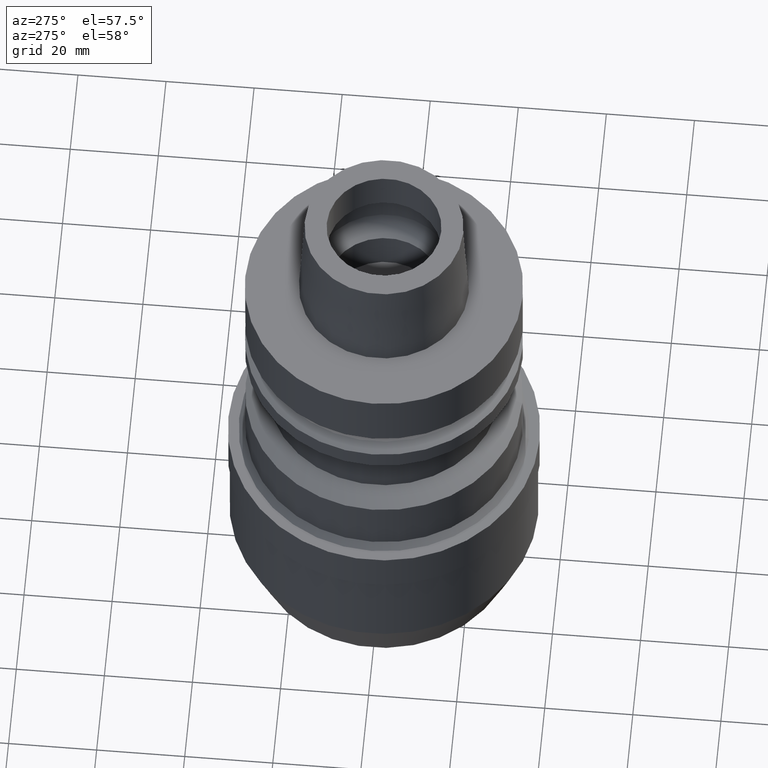
[diagram: clean part render]
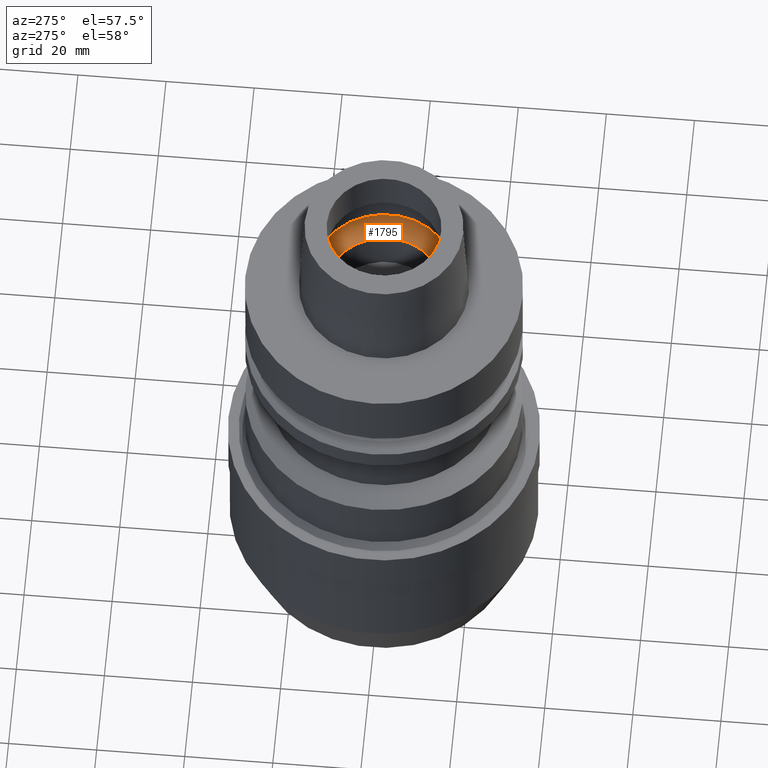
[diagram: same view with one face highlighted and labeled with its STEP entity id]
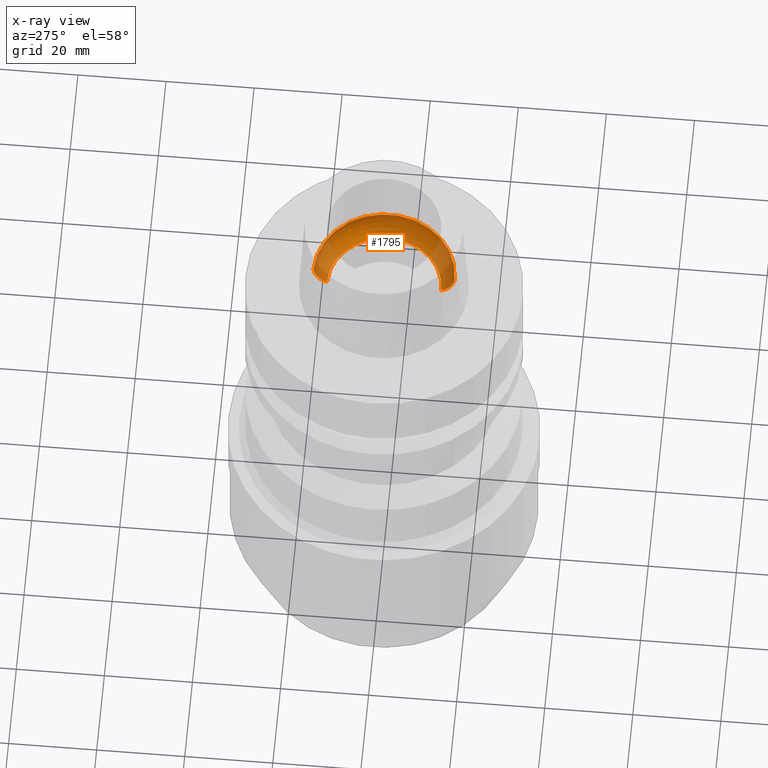
[diagram: x-ray of the same camera — body ghosted, the highlighted face saturated]
A machine part, auxiliary view. The second image highlights one B-rep face of the part: STEP entity #1795.
The next image is the same camera in x-ray: the body ghosted, the highlighted face saturated — about 32% of this face is hidden behind the body in this view.
In plain terms, the highlighted toroidal blend (fillet) surface has major radius 10 mm and minor (blend) radius 6 mm.
Its self-contained STEP definition (entity closure, byte-faithful):
#788=CARTESIAN_POINT('',(0.E0,-1.E1,5.246E0));
#789=DIRECTION('',(-1.E0,0.E0,0.E0));
#790=DIRECTION('',(0.E0,-5.E-1,-8.660254037844E-1));
#791=AXIS2_PLACEMENT_3D('',#788,#789,#790);
#804=CARTESIAN_POINT('',(0.E0,1.E1,5.246E0));
#805=DIRECTION('',(1.E0,0.E0,0.E0));
#806=DIRECTION('',(0.E0,5.E-1,-8.660254037844E-1));
#807=AXIS2_PLACEMENT_3D('',#804,#805,#806);
#812=CARTESIAN_POINT('',(0.E0,0.E0,5.246E0));
#813=DIRECTION('',(0.E0,0.E0,-1.E0));
#814=DIRECTION('',(0.E0,1.E0,0.E0));
#815=AXIS2_PLACEMENT_3D('',#812,#813,#814);
#820=CARTESIAN_POINT('',(0.E0,0.E0,4.984757729335E-2));
#821=DIRECTION('',(0.E0,0.E0,1.E0));
#822=DIRECTION('',(0.E0,-1.E0,0.E0));
#823=AXIS2_PLACEMENT_3D('',#820,#821,#822);
#1026=CARTESIAN_POINT('',(0.E0,1.3E1,4.984757729331E-2));
#1027=VERTEX_POINT('',#1026);
#1028=CARTESIAN_POINT('',(0.E0,-1.3E1,4.984757729335E-2));
#1029=VERTEX_POINT('',#1028);
#1030=CARTESIAN_POINT('',(0.E0,1.6E1,5.246E0));
#1031=VERTEX_POINT('',#1030);
#1032=CARTESIAN_POINT('',(0.E0,-1.6E1,5.246E0));
#1033=VERTEX_POINT('',#1032);
#1783=CARTESIAN_POINT('',(0.E0,0.E0,5.246E0));
#1784=DIRECTION('',(0.E0,0.E0,1.E0));
#1785=DIRECTION('',(0.E0,1.E0,0.E0));
#1786=AXIS2_PLACEMENT_3D('',#1783,#1784,#1785);
#1787=TOROIDAL_SURFACE('',#1786,1.E1,6.E0);
#1788=ORIENTED_EDGE('',*,*,#1773,.T.);
#1790=ORIENTED_EDGE('',*,*,#1789,.T.);
#1791=ORIENTED_EDGE('',*,*,#1776,.F.);
#1792=ORIENTED_EDGE('',*,*,#1747,.T.);
#1793=EDGE_LOOP('',(#1788,#1790,#1791,#1792));
#1794=FACE_OUTER_BOUND('',#1793,.F.);
#792=CIRCLE('',#791,6.E0);
#808=CIRCLE('',#807,6.E0);
#816=CIRCLE('',#815,1.6E1);
#824=CIRCLE('',#823,1.3E1);
#1747=EDGE_CURVE('',#1029,#1027,#824,.T.);
#1773=EDGE_CURVE('',#1027,#1031,#808,.T.);
#1776=EDGE_CURVE('',#1029,#1033,#792,.T.);
#1789=EDGE_CURVE('',#1031,#1033,#816,.T.);
#1795=ADVANCED_FACE('',(#1794),#1787,.F.);